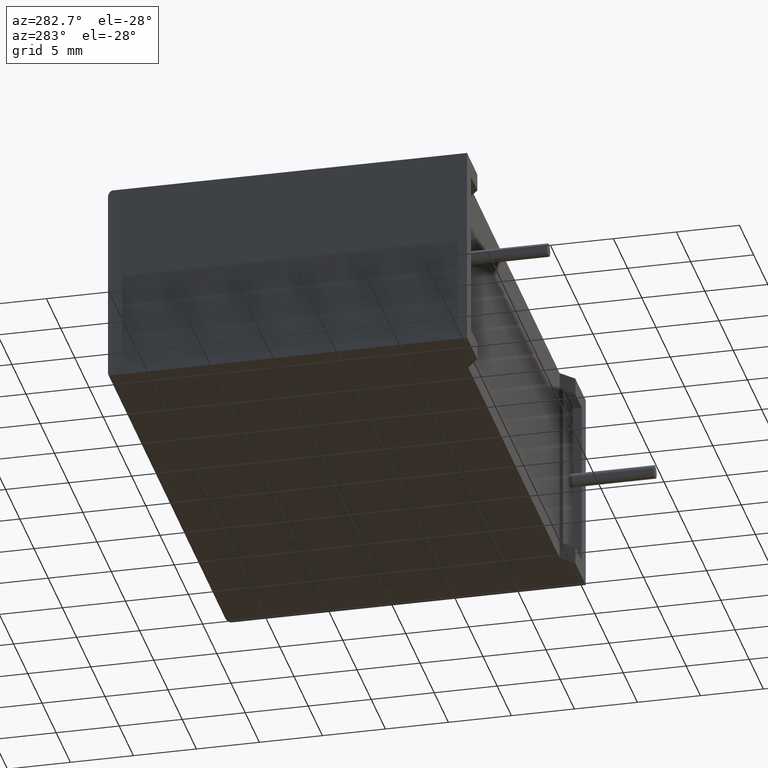
[diagram: clean part render]
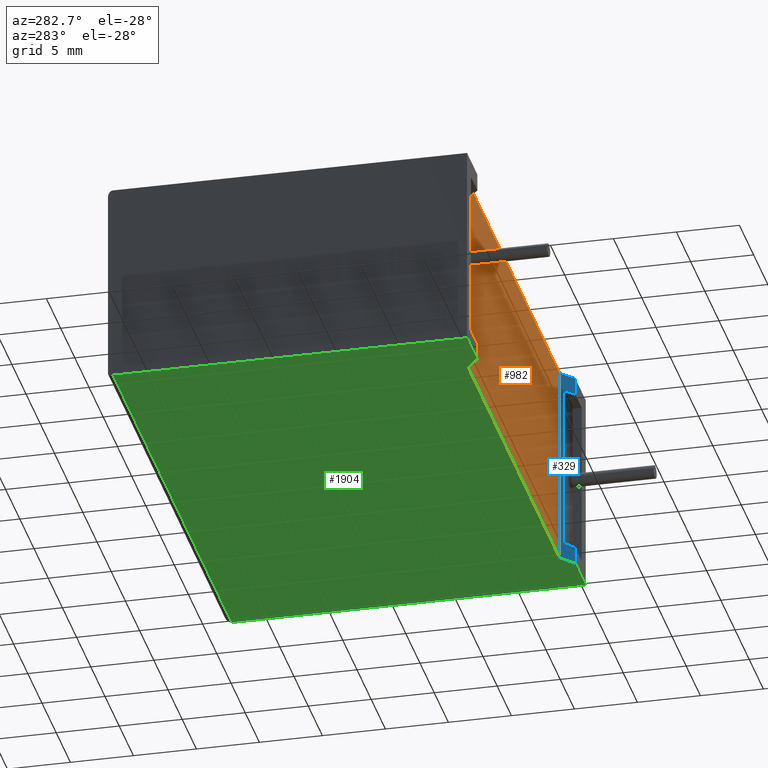
[diagram: same view with three faces highlighted in distinct colors, each labeled with its STEP entity id]
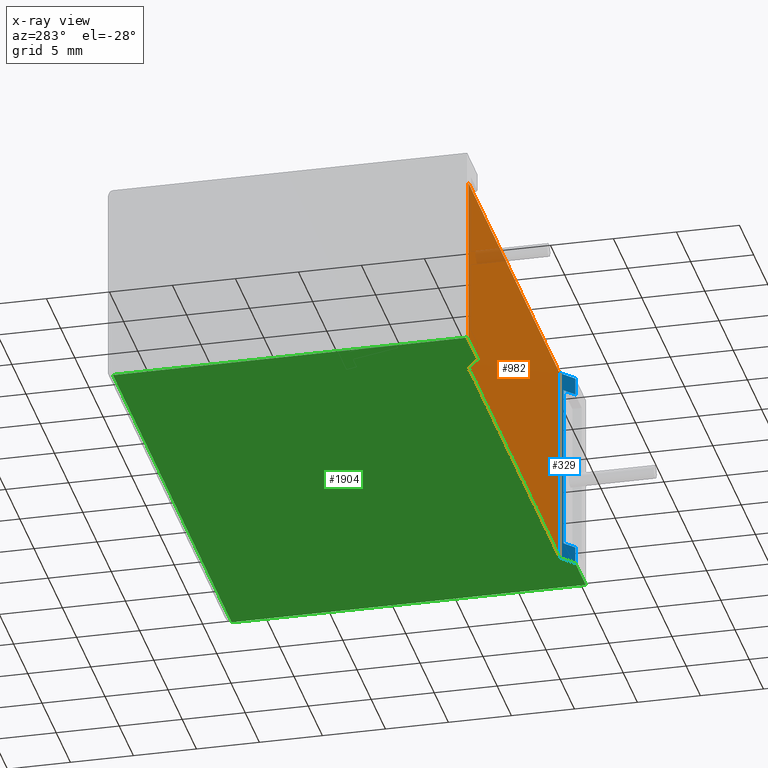
[diagram: x-ray of the same camera — body ghosted, the three highlighted faces saturated]
A machine part, auxiliary view with three faces highlighted in distinct colors.
The next image is the same camera in x-ray (body ghosted, the three faces saturated) — at least one of them is partly hidden behind the body in this view.
Their STEP definitions:

[orange] entity #982 — the highlighted planar face has unit normal (-0, 1, 0).
#191 = LINE ( 'NONE', #1407, #1672 ) ;
#507 = CARTESIAN_POINT ( 'NONE',  ( 36.98921399999999693, 0.9861279999999993384, 16.19999999999999929 ) ) ;
#656 = EDGE_CURVE ( 'NONE', #2489, #2376, #1294, .T. ) ;
#859 = VERTEX_POINT ( 'NONE', #2088 ) ;
#870 = LINE ( 'NONE', #1541, #2791 ) ;
#982 = ADVANCED_FACE ( 'NONE', ( #1998 ), #1318, .F. ) ;
#1054 = EDGE_CURVE ( 'NONE', #859, #2489, #870, .T. ) ;
#1058 = DIRECTION ( 'NONE',  ( -1.000000000000000000, -1.212964107801604344E-16, 0.000000000000000000 ) ) ;
#1103 = CARTESIAN_POINT ( 'NONE',  ( 4.810785999999999341, 0.9861279999999993384, 0.000000000000000000 ) ) ;
#1129 = DIRECTION ( 'NONE',  ( -1.000000000000000000, -1.212964107801604344E-16, 0.000000000000000000 ) ) ;
#1294 = LINE ( 'NONE', #1103, #2950 ) ;
#1318 = PLANE ( 'NONE',  #2345 ) ;
#1407 = CARTESIAN_POINT ( 'NONE',  ( 20.89999999999999858, 0.9861280000000012258, 16.19999999999999929 ) ) ;
#1541 = CARTESIAN_POINT ( 'NONE',  ( 20.89999999999999858, 0.9861280000000012258, 0.000000000000000000 ) ) ;
#1672 = VECTOR ( 'NONE', #1129, 1000.000000000000000 ) ;
#1757 = ORIENTED_EDGE ( 'NONE', *, *, #3005, .T. ) ;
#1872 = LINE ( 'NONE', #2312, #2208 ) ;
#1892 = ORIENTED_EDGE ( 'NONE', *, *, #1054, .F. ) ;
#1986 = CARTESIAN_POINT ( 'NONE',  ( 20.89999999999999858, 0.9861280000000012258, 0.000000000000000000 ) ) ;
#1998 = FACE_OUTER_BOUND ( 'NONE', #3054, .T. ) ;
#2039 = DIRECTION ( 'NONE',  ( -1.212964107801604344E-16, 1.000000000000000000, 0.000000000000000000 ) ) ;
#2068 = DIRECTION ( 'NONE',  ( -0.000000000000000000, -0.000000000000000000, 1.000000000000000000 ) ) ;
#2088 = CARTESIAN_POINT ( 'NONE',  ( 36.98921399999999693, 0.9861279999999993384, 0.000000000000000000 ) ) ;
#2160 = VERTEX_POINT ( 'NONE', #507 ) ;
#2208 = VECTOR ( 'NONE', #2068, 1000.000000000000000 ) ;
#2312 = CARTESIAN_POINT ( 'NONE',  ( 36.98921399999999693, 0.9861279999999993384, 0.000000000000000000 ) ) ;
#2345 = AXIS2_PLACEMENT_3D ( 'NONE', #1986, #2039, #1058 ) ;
#2376 = VERTEX_POINT ( 'NONE', #2881 ) ;
#2469 = DIRECTION ( 'NONE',  ( -1.000000000000000000, -1.212964107801604344E-16, 0.000000000000000000 ) ) ;
#2489 = VERTEX_POINT ( 'NONE', #2706 ) ;
#2550 = ORIENTED_EDGE ( 'NONE', *, *, #2970, .T. ) ;
#2706 = CARTESIAN_POINT ( 'NONE',  ( 4.810785999999999341, 0.9861279999999993384, 0.000000000000000000 ) ) ;
#2749 = DIRECTION ( 'NONE',  ( -0.000000000000000000, -0.000000000000000000, 1.000000000000000000 ) ) ;
#2779 = ORIENTED_EDGE ( 'NONE', *, *, #656, .F. ) ;
#2791 = VECTOR ( 'NONE', #2469, 1000.000000000000000 ) ;
#2881 = CARTESIAN_POINT ( 'NONE',  ( 4.810785999999999341, 0.9861279999999993384, 16.19999999999999929 ) ) ;
#2950 = VECTOR ( 'NONE', #2749, 1000.000000000000000 ) ;
#2970 = EDGE_CURVE ( 'NONE', #2160, #2376, #191, .T. ) ;
#3005 = EDGE_CURVE ( 'NONE', #859, #2160, #1872, .T. ) ;
#3054 = EDGE_LOOP ( 'NONE', ( #2550, #2779, #1892, #1757 ) ) ;

[blue] entity #329 — the highlighted planar face has unit normal (-0.6474, -0.7621, 0).
#206 = DIRECTION ( 'NONE',  ( -0.000000000000000000, -0.000000000000000000, 1.000000000000000000 ) ) ;
#232 = LINE ( 'NONE', #1171, #2792 ) ;
#329 = ADVANCED_FACE ( 'NONE', ( #1921 ), #1699, .T. ) ;
#414 = DIRECTION ( 'NONE',  ( -0.000000000000000000, -0.000000000000000000, 1.000000000000000000 ) ) ;
#433 = VECTOR ( 'NONE', #681, 1000.000000000000000 ) ;
#504 = CARTESIAN_POINT ( 'NONE',  ( 38.14999999999999858, 2.234980408443919708E-16, 0.000000000000000000 ) ) ;
#507 = CARTESIAN_POINT ( 'NONE',  ( 36.98921399999999693, 0.9861279999999993384, 16.19999999999999929 ) ) ;
#681 = DIRECTION ( 'NONE',  ( 0.7621142753456608965, -0.6474425312831697532, 1.016619757209767729E-16 ) ) ;
#753 = EDGE_CURVE ( 'NONE', #1621, #1414, #2511, .T. ) ;
#859 = VERTEX_POINT ( 'NONE', #2088 ) ;
#880 = VECTOR ( 'NONE', #2162, 1000.000000000000000 ) ;
#918 = AXIS2_PLACEMENT_3D ( 'NONE', #961, #1006, #1949 ) ;
#946 = CARTESIAN_POINT ( 'NONE',  ( 38.14999999999999858, 2.234980408443919708E-16, 16.19999999999999929 ) ) ;
#961 = CARTESIAN_POINT ( 'NONE',  ( 38.14999999999999858, 2.234980408443919708E-16, 0.000000000000000000 ) ) ;
#972 = CARTESIAN_POINT ( 'NONE',  ( 38.14999999999999858, 2.234980408443919708E-16, 16.19999999999999929 ) ) ;
#981 = VERTEX_POINT ( 'NONE', #2728 ) ;
#1006 = DIRECTION ( 'NONE',  ( -0.6474425312831697532, -0.7621142753456608965, 0.000000000000000000 ) ) ;
#1171 = CARTESIAN_POINT ( 'NONE',  ( 16.43099120208313835, 18.45105188025368292, 1.393333193999999997 ) ) ;
#1188 = CARTESIAN_POINT ( 'NONE',  ( 39.09064418492697257, -0.7991098865713958110, 14.80666680599999907 ) ) ;
#1200 = LINE ( 'NONE', #1188, #433 ) ;
#1212 = ORIENTED_EDGE ( 'NONE', *, *, #753, .T. ) ;
#1216 = VECTOR ( 'NONE', #414, 1000.000000000000000 ) ;
#1219 = CARTESIAN_POINT ( 'NONE',  ( 38.14999999999999858, 2.234980408443919708E-16, 1.393333193999999997 ) ) ;
#1228 = ORIENTED_EDGE ( 'NONE', *, *, #3005, .F. ) ;
#1311 = VERTEX_POINT ( 'NONE', #2207 ) ;
#1312 = ORIENTED_EDGE ( 'NONE', *, *, #2381, .T. ) ;
#1321 = VERTEX_POINT ( 'NONE', #1593 ) ;
#1341 = EDGE_LOOP ( 'NONE', ( #1913, #1212, #2885, #1228, #2754, #2767, #1312, #2109 ) ) ;
#1391 = DIRECTION ( 'NONE',  ( 0.7621142753456608965, -0.6474425312831697532, -0.000000000000000000 ) ) ;
#1414 = VERTEX_POINT ( 'NONE', #946 ) ;
#1476 = VERTEX_POINT ( 'NONE', #1219 ) ;
#1496 = EDGE_CURVE ( 'NONE', #2160, #1414, #2174, .T. ) ;
#1585 = CARTESIAN_POINT ( 'NONE',  ( 38.14999999999999858, 2.234980408443919708E-16, 0.000000000000000000 ) ) ;
#1593 = CARTESIAN_POINT ( 'NONE',  ( 37.26716379618061126, 0.7500000000000000000, 1.393333193999999997 ) ) ;
#1621 = VERTEX_POINT ( 'NONE', #2907 ) ;
#1699 = PLANE ( 'NONE',  #918 ) ;
#1872 = LINE ( 'NONE', #2312, #2208 ) ;
#1913 = ORIENTED_EDGE ( 'NONE', *, *, #2069, .T. ) ;
#1921 = FACE_OUTER_BOUND ( 'NONE', #1341, .T. ) ;
#1949 = DIRECTION ( 'NONE',  ( 0.7621142753456608965, -0.6474425312831697532, 0.000000000000000000 ) ) ;
#1975 = CARTESIAN_POINT ( 'NONE',  ( 37.26716379618061126, 0.7500000000000000000, 0.000000000000000000 ) ) ;
#2042 = DIRECTION ( 'NONE',  ( 0.000000000000000000, 0.000000000000000000, -1.000000000000000000 ) ) ;
#2044 = EDGE_CURVE ( 'NONE', #859, #1311, #2574, .T. ) ;
#2068 = DIRECTION ( 'NONE',  ( -0.000000000000000000, -0.000000000000000000, 1.000000000000000000 ) ) ;
#2069 = EDGE_CURVE ( 'NONE', #981, #1621, #1200, .T. ) ;
#2088 = CARTESIAN_POINT ( 'NONE',  ( 36.98921399999999693, 0.9861279999999993384, 0.000000000000000000 ) ) ;
#2109 = ORIENTED_EDGE ( 'NONE', *, *, #2553, .F. ) ;
#2156 = DIRECTION ( 'NONE',  ( -0.7621142753456608965, 0.6474425312831697532, 0.000000000000000000 ) ) ;
#2160 = VERTEX_POINT ( 'NONE', #507 ) ;
#2162 = DIRECTION ( 'NONE',  ( 0.7621142753456608965, -0.6474425312831697532, -0.000000000000000000 ) ) ;
#2174 = LINE ( 'NONE', #972, #880 ) ;
#2207 = CARTESIAN_POINT ( 'NONE',  ( 38.14999999999999858, 2.234980408443919708E-16, 0.000000000000000000 ) ) ;
#2208 = VECTOR ( 'NONE', #2068, 1000.000000000000000 ) ;
#2290 = CARTESIAN_POINT ( 'NONE',  ( 38.14999999999999858, 2.234980408443919708E-16, 0.000000000000000000 ) ) ;
#2312 = CARTESIAN_POINT ( 'NONE',  ( 36.98921399999999693, 0.9861279999999993384, 0.000000000000000000 ) ) ;
#2381 = EDGE_CURVE ( 'NONE', #1476, #1321, #232, .T. ) ;
#2399 = VECTOR ( 'NONE', #206, 1000.000000000000000 ) ;
#2511 = LINE ( 'NONE', #1585, #1216 ) ;
#2553 = EDGE_CURVE ( 'NONE', #981, #1321, #2656, .T. ) ;
#2574 = LINE ( 'NONE', #504, #2736 ) ;
#2656 = LINE ( 'NONE', #1975, #2847 ) ;
#2728 = CARTESIAN_POINT ( 'NONE',  ( 37.26716379618061126, 0.7500000000000000000, 14.80666680599999907 ) ) ;
#2736 = VECTOR ( 'NONE', #1391, 1000.000000000000000 ) ;
#2754 = ORIENTED_EDGE ( 'NONE', *, *, #2044, .T. ) ;
#2767 = ORIENTED_EDGE ( 'NONE', *, *, #3019, .T. ) ;
#2792 = VECTOR ( 'NONE', #2156, 1000.000000000000000 ) ;
#2847 = VECTOR ( 'NONE', #2042, 1000.000000000000000 ) ;
#2885 = ORIENTED_EDGE ( 'NONE', *, *, #1496, .F. ) ;
#2907 = CARTESIAN_POINT ( 'NONE',  ( 38.14999999999999858, 2.234980408443919708E-16, 14.80666680599999907 ) ) ;
#3005 = EDGE_CURVE ( 'NONE', #859, #2160, #1872, .T. ) ;
#3017 = LINE ( 'NONE', #2290, #2399 ) ;
#3019 = EDGE_CURVE ( 'NONE', #1311, #1476, #3017, .T. ) ;

[green] entity #1904 — the highlighted planar face has unit normal (0, 0, -1).
#270 = LINE ( 'NONE', #2413, #1914 ) ;
#300 = VERTEX_POINT ( 'NONE', #1409 ) ;
#307 = EDGE_CURVE ( 'NONE', #1311, #300, #2163, .T. ) ;
#404 = CARTESIAN_POINT ( 'NONE',  ( 41.79999999999999716, 0.000000000000000000, 0.000000000000000000 ) ) ;
#434 = VECTOR ( 'NONE', #785, 1000.000000000000000 ) ;
#456 = VERTEX_POINT ( 'NONE', #1781 ) ;
#504 = CARTESIAN_POINT ( 'NONE',  ( 38.14999999999999858, 2.234980408443919708E-16, 0.000000000000000000 ) ) ;
#556 = EDGE_LOOP ( 'NONE', ( #922, #2043, #1356, #1328, #1928, #2087, #1330, #2842 ) ) ;
#559 = PLANE ( 'NONE',  #2498 ) ;
#701 = EDGE_CURVE ( 'NONE', #1529, #2981, #2240, .T. ) ;
#715 = VERTEX_POINT ( 'NONE', #860 ) ;
#735 = EDGE_CURVE ( 'NONE', #300, #456, #2502, .T. ) ;
#738 = CARTESIAN_POINT ( 'NONE',  ( 3.649999999999999467, 2.234980408443919708E-16, 0.000000000000000000 ) ) ;
#777 = CARTESIAN_POINT ( 'NONE',  ( 0.000000000000000000, 0.000000000000000000, 0.000000000000000000 ) ) ;
#785 = DIRECTION ( 'NONE',  ( -0.7621142753456608965, -0.6474425312831697532, -0.000000000000000000 ) ) ;
#834 = DIRECTION ( 'NONE',  ( 0.000000000000000000, 1.000000000000000000, 0.000000000000000000 ) ) ;
#859 = VERTEX_POINT ( 'NONE', #2088 ) ;
#860 = CARTESIAN_POINT ( 'NONE',  ( 0.000000000000000000, 28.10000000000000142, 0.000000000000000000 ) ) ;
#870 = LINE ( 'NONE', #1541, #2791 ) ;
#922 = ORIENTED_EDGE ( 'NONE', *, *, #2514, .F. ) ;
#940 = EDGE_CURVE ( 'NONE', #2489, #2981, #2844, .T. ) ;
#1054 = EDGE_CURVE ( 'NONE', #859, #2489, #870, .T. ) ;
#1175 = VECTOR ( 'NONE', #2228, 1000.000000000000000 ) ;
#1195 = DIRECTION ( 'NONE',  ( 1.000000000000000000, 0.000000000000000000, 0.000000000000000000 ) ) ;
#1295 = CARTESIAN_POINT ( 'NONE',  ( 0.000000000000000000, 0.000000000000000000, 0.000000000000000000 ) ) ;
#1311 = VERTEX_POINT ( 'NONE', #2207 ) ;
#1328 = ORIENTED_EDGE ( 'NONE', *, *, #307, .F. ) ;
#1330 = ORIENTED_EDGE ( 'NONE', *, *, #940, .T. ) ;
#1350 = CARTESIAN_POINT ( 'NONE',  ( 0.000000000000000000, 0.000000000000000000, 0.000000000000000000 ) ) ;
#1356 = ORIENTED_EDGE ( 'NONE', *, *, #735, .F. ) ;
#1357 = CARTESIAN_POINT ( 'NONE',  ( 3.649999999999999467, 2.234980408443919708E-16, 0.000000000000000000 ) ) ;
#1391 = DIRECTION ( 'NONE',  ( 0.7621142753456608965, -0.6474425312831697532, -0.000000000000000000 ) ) ;
#1409 = CARTESIAN_POINT ( 'NONE',  ( 41.79999999999999716, 0.000000000000000000, 0.000000000000000000 ) ) ;
#1508 = FACE_OUTER_BOUND ( 'NONE', #556, .T. ) ;
#1529 = VERTEX_POINT ( 'NONE', #2870 ) ;
#1531 = DIRECTION ( 'NONE',  ( 1.000000000000000000, 0.000000000000000000, 0.000000000000000000 ) ) ;
#1541 = CARTESIAN_POINT ( 'NONE',  ( 20.89999999999999858, 0.9861280000000012258, 0.000000000000000000 ) ) ;
#1752 = DIRECTION ( 'NONE',  ( 0.000000000000000000, 0.000000000000000000, -1.000000000000000000 ) ) ;
#1781 = CARTESIAN_POINT ( 'NONE',  ( 41.79999999999999716, 28.10000000000000142, 0.000000000000000000 ) ) ;
#1904 = ADVANCED_FACE ( 'NONE', ( #1508 ), #559, .T. ) ;
#1908 = VECTOR ( 'NONE', #1195, 1000.000000000000000 ) ;
#1914 = VECTOR ( 'NONE', #2379, 1000.000000000000000 ) ;
#1928 = ORIENTED_EDGE ( 'NONE', *, *, #2044, .F. ) ;
#1960 = VECTOR ( 'NONE', #834, 1000.000000000000000 ) ;
#2028 = CARTESIAN_POINT ( 'NONE',  ( 0.000000000000000000, 0.000000000000000000, 0.000000000000000000 ) ) ;
#2043 = ORIENTED_EDGE ( 'NONE', *, *, #2114, .T. ) ;
#2044 = EDGE_CURVE ( 'NONE', #859, #1311, #2574, .T. ) ;
#2087 = ORIENTED_EDGE ( 'NONE', *, *, #1054, .T. ) ;
#2088 = CARTESIAN_POINT ( 'NONE',  ( 36.98921399999999693, 0.9861279999999993384, 0.000000000000000000 ) ) ;
#2114 = EDGE_CURVE ( 'NONE', #715, #456, #270, .T. ) ;
#2163 = LINE ( 'NONE', #777, #1908 ) ;
#2182 = LINE ( 'NONE', #1295, #1175 ) ;
#2207 = CARTESIAN_POINT ( 'NONE',  ( 38.14999999999999858, 2.234980408443919708E-16, 0.000000000000000000 ) ) ;
#2228 = DIRECTION ( 'NONE',  ( -0.000000000000000000, -1.000000000000000000, -0.000000000000000000 ) ) ;
#2240 = LINE ( 'NONE', #1350, #2686 ) ;
#2379 = DIRECTION ( 'NONE',  ( 1.000000000000000000, -0.000000000000000000, -0.000000000000000000 ) ) ;
#2413 = CARTESIAN_POINT ( 'NONE',  ( 41.79999999999999716, 28.10000000000000142, 0.000000000000000000 ) ) ;
#2469 = DIRECTION ( 'NONE',  ( -1.000000000000000000, -1.212964107801604344E-16, 0.000000000000000000 ) ) ;
#2483 = DIRECTION ( 'NONE',  ( -1.000000000000000000, 0.000000000000000000, -0.000000000000000000 ) ) ;
#2489 = VERTEX_POINT ( 'NONE', #2706 ) ;
#2498 = AXIS2_PLACEMENT_3D ( 'NONE', #2028, #1752, #2483 ) ;
#2502 = LINE ( 'NONE', #404, #1960 ) ;
#2514 = EDGE_CURVE ( 'NONE', #715, #1529, #2182, .T. ) ;
#2574 = LINE ( 'NONE', #504, #2736 ) ;
#2686 = VECTOR ( 'NONE', #1531, 1000.000000000000000 ) ;
#2706 = CARTESIAN_POINT ( 'NONE',  ( 4.810785999999999341, 0.9861279999999993384, 0.000000000000000000 ) ) ;
#2736 = VECTOR ( 'NONE', #1391, 1000.000000000000000 ) ;
#2791 = VECTOR ( 'NONE', #2469, 1000.000000000000000 ) ;
#2842 = ORIENTED_EDGE ( 'NONE', *, *, #701, .F. ) ;
#2844 = LINE ( 'NONE', #738, #434 ) ;
#2870 = CARTESIAN_POINT ( 'NONE',  ( 0.000000000000000000, 0.000000000000000000, 0.000000000000000000 ) ) ;
#2981 = VERTEX_POINT ( 'NONE', #1357 ) ;